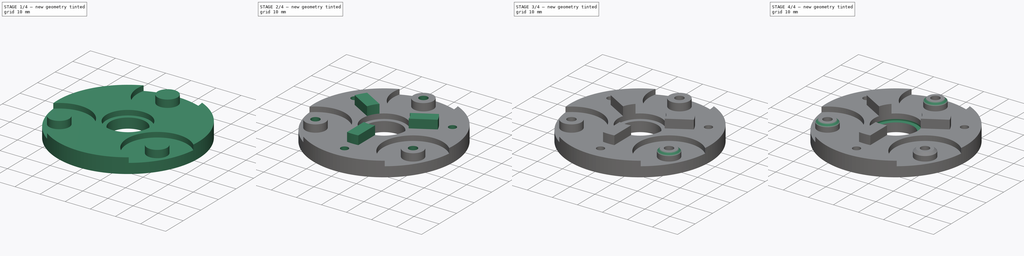
[diagram: build sequence overview — one tinted view per stage of 4, left to right]
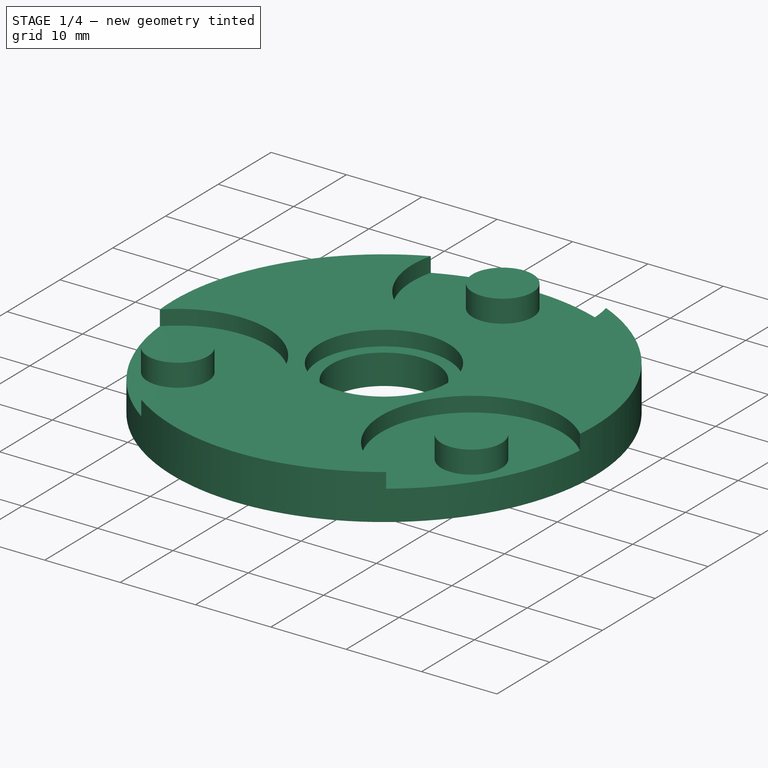
[diagram: stage 1 of 4 — iso view after this stage's code; geometry added in this stage tinted green]
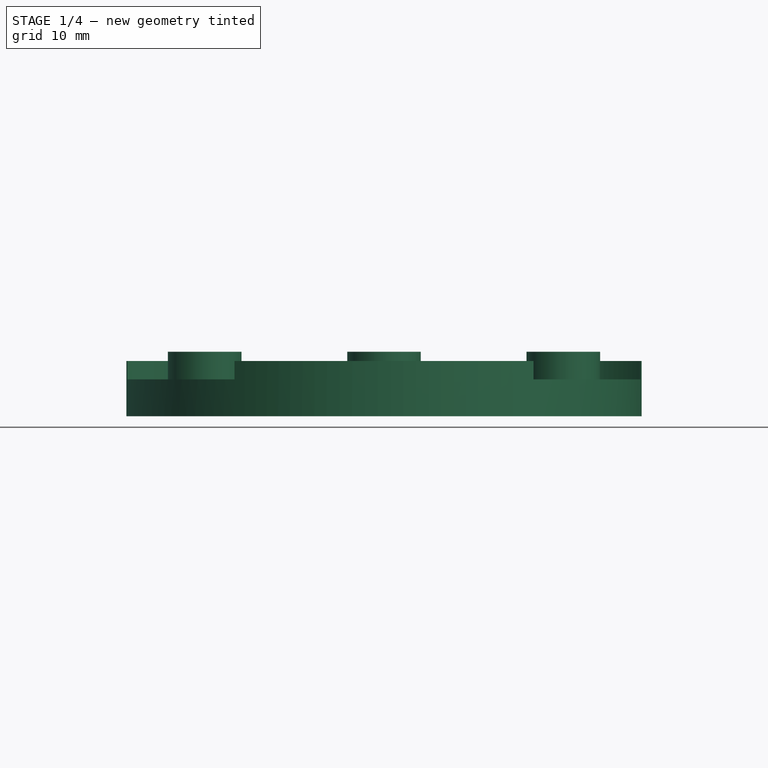
[diagram: stage 1 of 4 — front view after this stage's code; geometry added in this stage tinted green]
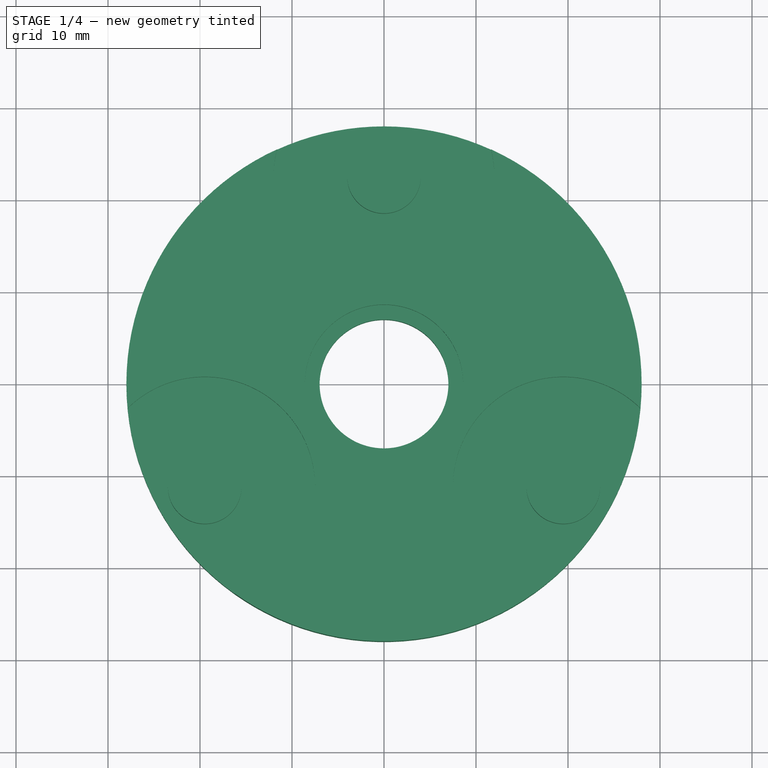
[diagram: stage 1 of 4 — top view after this stage's code; geometry added in this stage tinted green]
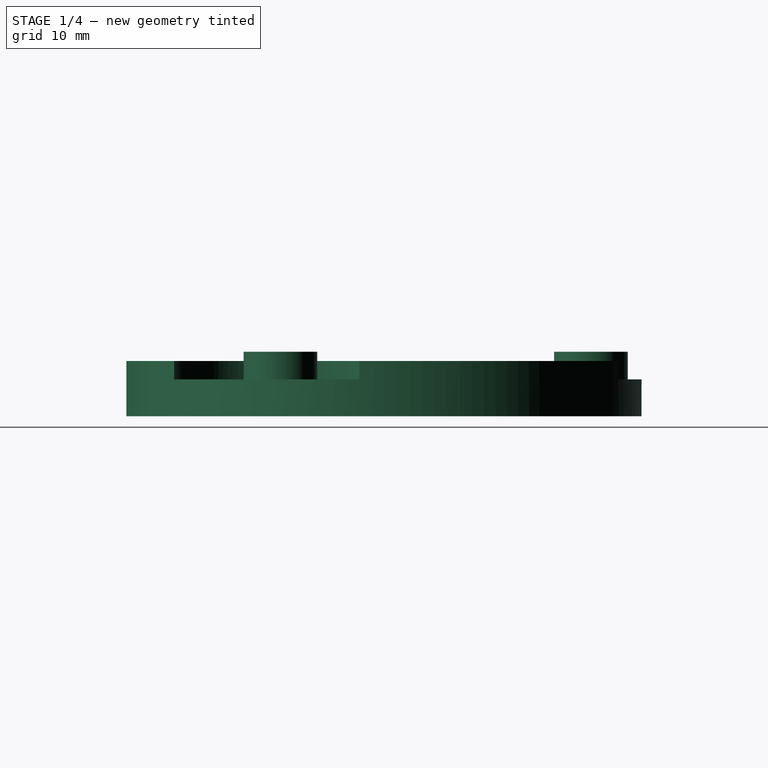
[diagram: stage 1 of 4 — right view after this stage's code; geometry added in this stage tinted green]
FCSTD DOCUMENT  (FreeCAD 0.16R6705 (Git))
Label: CarrierA
License: All rights reserved
LicenseURL: http://en.wikipedia.org/wiki/All_rights_reserved
objects: Sketcher::SketchObject×7, PartDesign::Pocket×4, PartDesign::Pad×3, PartDesign::Chamfer×3, PartDesign::PolarPattern×1
note: 25 computed .brp shape members not serialized (recipe doc carries the construction recipe); baked Part::Feature solids carry a one-line shape summary decoded from their .brp

FEATURE [Sketcher::SketchObject] Sketch  label="BaseDisk"
  Placement = pos=(0,0,25) rot=(0,0,1;0rad)
  sketch-geometry (12):
    g0: Circle [constr] CenterX=0 CenterY=0 CenterZ=0 NormalX=0 NormalY=0 NormalZ=1 Radius=22.5
    g1: LineSegment [constr] StartX=0 StartY=0 StartZ=0 EndX=-19.4856 EndY=-11.25 EndZ=0
    g2: LineSegment [constr] StartX=0 StartY=0 StartZ=0 EndX=19.4856 EndY=-11.25 EndZ=0
    g3: LineSegment [constr] StartX=0 StartY=0 StartZ=0 EndX=0 EndY=22.5 EndZ=0
    g4: Circle [constr] CenterX=0 CenterY=22.5 CenterZ=0 NormalX=0 NormalY=0 NormalZ=1 Radius=1.6
    g5: Circle [constr] CenterX=-19.4856 CenterY=-11.25 CenterZ=0 NormalX=0 NormalY=0 NormalZ=1 Radius=1.6
    g6: Circle [constr] CenterX=19.4856 CenterY=-11.25 CenterZ=0 NormalX=0 NormalY=0 NormalZ=1 Radius=1.6
    g7: Circle CenterX=0 CenterY=0 CenterZ=0 NormalX=0 NormalY=0 NormalZ=1 Radius=7
    g8: Circle CenterX=0 CenterY=0 CenterZ=0 NormalX=0 NormalY=0 NormalZ=1 Radius=28
    g9: LineSegment [constr] StartX=0 StartY=0 StartZ=0 EndX=-24.2487 EndY=14 EndZ=0
    g10: LineSegment [constr] StartX=0 StartY=0 StartZ=0 EndX=24.2487 EndY=14 EndZ=0
    g11: LineSegment [constr] StartX=0 StartY=0 StartZ=0 EndX=0 EndY=-28 EndZ=0
  constraints (30):
    c: Coincident(g0,g-1)
    c: Radius(g0) = 22.5
    c: Coincident(g1,g-1)
    c: PointOnObject(g1,g0)
    c: Coincident(g2,g-1)
    c: PointOnObject(g2,g0)
    c: Angle(g1,g2) = 2.0944
    c: Coincident(g3,g-1)
    c: PointOnObject(g3,g0)
    c: Vertical(g3)
    c: Angle(g2,g3) = 2.0944
    c: Coincident(g4,g3)
    c: Coincident(g5,g1)
    c: Coincident(g6,g2)
    c: Coincident(g7,g-1)
    c: Radius(g6) = 1.6
    c: Equal(g6,g4)
    c: Equal(g6,g5)
    c: Radius(g7) = 7
    c: Radius(g8) = 28
    c: Coincident(g9,g-1)
    c: PointOnObject(g9,g8)
    c: Coincident(g8,g-1)
    c: Coincident(g10,g-1)
    c: PointOnObject(g10,g8)
    c: Coincident(g11,g-1)
    c: PointOnObject(g11,g8)
    c: Angle(g11,g10) = 2.0944
    c: Angle(g9,g11) = 2.0944
    c: Vertical(g11)
FEATURE [PartDesign::Pad] Pad
  Length = 6
  Length2 = 100
  Placement = pos=(0,0,25) rot=(0,0,1;0rad)
  Sketch = -> Sketch
  Type = 0
FEATURE [Sketcher::SketchObject] Sketch007  label="GearCutOut"
  Placement = pos=(0,0,31) rot=(0,0,1;0rad)
  Support = -> Pad [Face4]
  sketch-geometry (13):
    g0: Circle [constr] CenterX=0 CenterY=0 CenterZ=0 NormalX=0 NormalY=0 NormalZ=1 Radius=22.5
    g1: LineSegment [constr] StartX=0 StartY=0 StartZ=0 EndX=-19.4856 EndY=-11.25 EndZ=0
    g2: LineSegment [constr] StartX=0 StartY=0 StartZ=0 EndX=19.4856 EndY=-11.25 EndZ=0
    g3: LineSegment [constr] StartX=0 StartY=0 StartZ=0 EndX=0 EndY=22.5 EndZ=0
    g4: Circle CenterX=0 CenterY=22.5 CenterZ=0 NormalX=0 NormalY=0 NormalZ=1 Radius=12
    g5: Circle CenterX=-19.4856 CenterY=-11.25 CenterZ=0 NormalX=0 NormalY=0 NormalZ=1 Radius=12
    g6: Circle CenterX=19.4856 CenterY=-11.25 CenterZ=0 NormalX=0 NormalY=0 NormalZ=1 Radius=12
    g7: Circle [constr] CenterX=0 CenterY=0 CenterZ=0 NormalX=0 NormalY=0 NormalZ=1 Radius=14
    g8: Circle [constr] CenterX=0 CenterY=0 CenterZ=0 NormalX=0 NormalY=0 NormalZ=1 Radius=28
    g9: LineSegment [constr] StartX=0 StartY=0 StartZ=0 EndX=-24.2487 EndY=14 EndZ=0
    g10: LineSegment [constr] StartX=0 StartY=0 StartZ=0 EndX=24.2487 EndY=14 EndZ=0
    g11: LineSegment [constr] StartX=0 StartY=0 StartZ=0 EndX=0 EndY=-28 EndZ=0
    g12: Circle CenterX=0 CenterY=0 CenterZ=0 NormalX=0 NormalY=0 NormalZ=1 Radius=8.6
  constraints (32):
    c: Coincident(g0,g-1)
    c: Radius(g0) = 22.5
    c: Coincident(g1,g-1)
    c: PointOnObject(g1,g0)
    c: Coincident(g2,g-1)
    c: PointOnObject(g2,g0)
    c: Angle(g1,g2) = 2.0944
    c: Coincident(g3,g-1)
    c: PointOnObject(g3,g0)
    c: Vertical(g3)
    c: Angle(g2,g3) = 2.0944
    c: Coincident(g4,g3)
    c: Coincident(g5,g1)
    c: Coincident(g6,g2)
    c: Coincident(g7,g-1)
    c: Radius(g6) = 12
    c: Equal(g6,g4)
    c: Equal(g6,g5)
    c: Radius(g7) = 14
    c: Radius(g8) = 28
    c: Coincident(g9,g-1)
    c: PointOnObject(g9,g8)
    c: Coincident(g8,g-1)
    c: Coincident(g10,g-1)
    c: PointOnObject(g10,g8)
    c: Coincident(g11,g-1)
    c: PointOnObject(g11,g8)
    c: Angle(g11,g10) = 2.0944
    c: Angle(g9,g11) = 2.0944
    c: Vertical(g11)
    c: Coincident(g12,g-1)
    c: Radius(g12) = 8.6
FEATURE [PartDesign::Pocket] Pocket002
  Length = 2
  Placement = pos=(0,0,25) rot=(0,0,1;0rad)
  Sketch = -> Sketch007
  Type = 0
FEATURE [Sketcher::SketchObject] Sketch001  label="BearingSupports"
  Placement = pos=(0,0,29) rot=(0,0,1;0rad)
  Support = -> Pocket002 [Face5]
  sketch-geometry (10):
    g0: Circle [constr] CenterX=0 CenterY=0 CenterZ=0 NormalX=0 NormalY=0 NormalZ=1 Radius=22.5
    g1: LineSegment [constr] StartX=0 StartY=0 StartZ=0 EndX=0 EndY=22.5 EndZ=0
    g2: LineSegment [constr] StartX=0 StartY=0 StartZ=0 EndX=-19.4856 EndY=-11.25 EndZ=0
    g3: LineSegment [constr] StartX=19.4856 StartY=-11.25 StartZ=0 EndX=0 EndY=0 EndZ=0
    g4: Circle CenterX=0 CenterY=22.5 CenterZ=0 NormalX=0 NormalY=0 NormalZ=1 Radius=4
    g5: Circle [constr] CenterX=0 CenterY=22.5 CenterZ=0 NormalX=0 NormalY=0 NormalZ=1 Radius=1.6
    g6: Circle CenterX=-19.4856 CenterY=-11.25 CenterZ=0 NormalX=0 NormalY=0 NormalZ=1 Radius=4
    g7: Circle [constr] CenterX=-19.4856 CenterY=-11.25 CenterZ=0 NormalX=0 NormalY=0 NormalZ=1 Radius=1.6
    g8: Circle [constr] CenterX=19.4856 CenterY=-11.25 CenterZ=0 NormalX=0 NormalY=0 NormalZ=1 Radius=1.6
    g9: Circle CenterX=19.4856 CenterY=-11.25 CenterZ=0 NormalX=0 NormalY=0 NormalZ=1 Radius=4
  constraints (23):
    c: Coincident(g0,g-1)
    c: Radius(g0) = 22.5
    c: Coincident(g1,g-1)
    c: Vertical(g1)
    c: PointOnObject(g2,g0)
    c: PointOnObject(g3,g0)
    c: Coincident(g3,g-1)
    c: Angle(g2,g3) = 2.0944
    c: Angle(g3,g1) = 2.0944
    c: Coincident(g4,g1)
    c: Coincident(g5,g1)
    c: Radius(g5) = 1.6
    c: Radius(g4) = 4
    c: Coincident(g6,g2)
    c: Radius(g6) = 4
    c: Coincident(g7,g2)
    c: Radius(g7) = 1.6
    c: Coincident(g8,g3)
    c: Radius(g8) = 1.6
    c: Coincident(g9,g3)
    c: Radius(g9) = 4
    c: PointOnObject(g1,g0)
    c: Coincident(g2,g-1)
FEATURE [PartDesign::Pad] Pad001
  Length = 3
  Length2 = 100
  Placement = pos=(0,0,25) rot=(0,0,1;0rad)
  Sketch = -> Sketch001
  Type = 0
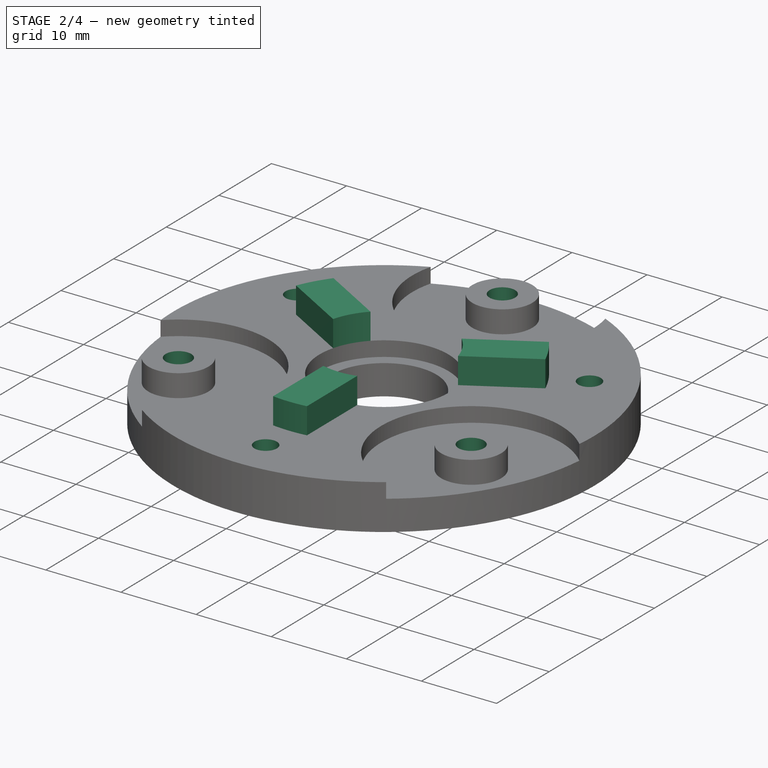
[diagram: stage 2 of 4 — iso view after this stage's code; geometry added in this stage tinted green]
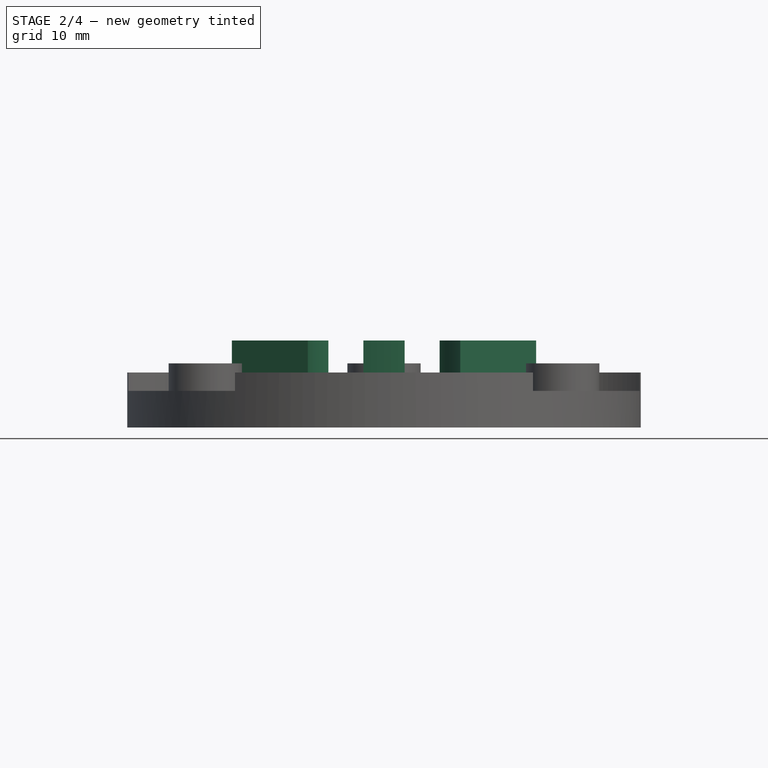
[diagram: stage 2 of 4 — front view after this stage's code; geometry added in this stage tinted green]
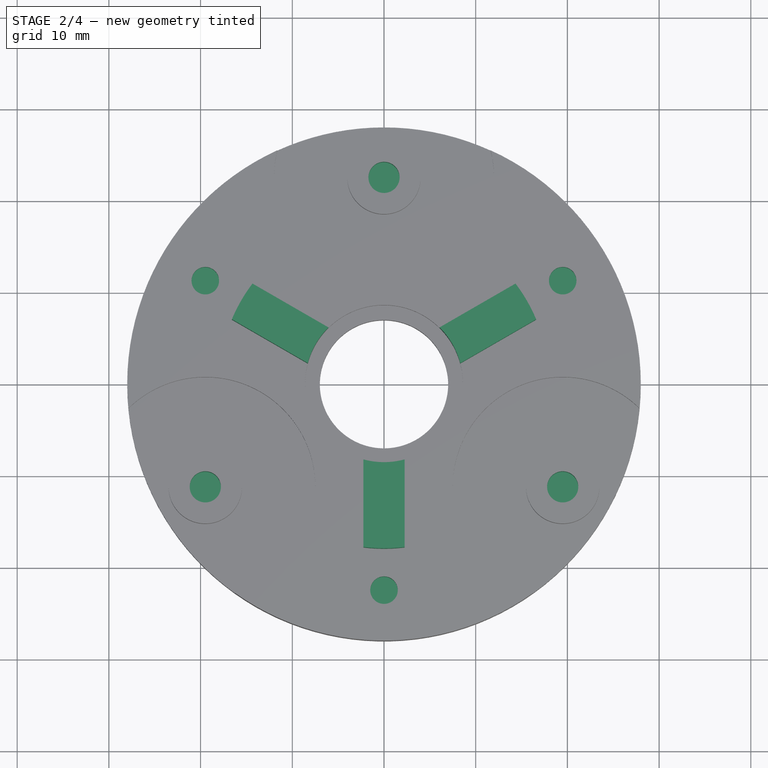
[diagram: stage 2 of 4 — top view after this stage's code; geometry added in this stage tinted green]
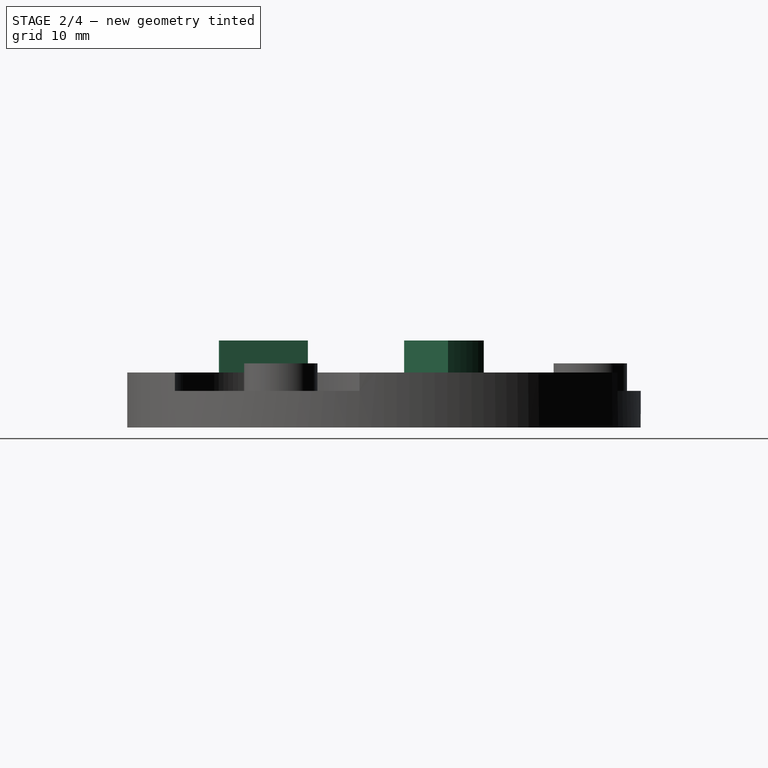
[diagram: stage 2 of 4 — right view after this stage's code; geometry added in this stage tinted green]
FEATURE [Sketcher::SketchObject] Sketch005  label="Lock"
  Placement = pos=(0,0,31) rot=(0,0,1;0rad)
  Support = -> Pad001 [Face3]
  sketch-geometry (4):
    g0: LineSegment StartX=-2.25 StartY=-8.30045 StartZ=0 EndX=-2.25 EndY=-17.8588 EndZ=0
    g1: LineSegment StartX=2.25 StartY=-8.30045 StartZ=0 EndX=2.25 EndY=-17.8588 EndZ=0
    g2: ArcOfCircle CenterX=0 CenterY=0 CenterZ=0 NormalX=0 NormalY=0 NormalZ=1 Radius=8.6 StartAngle=4.44768 EndAngle=4.9771
    g3: ArcOfCircle CenterX=0 CenterY=0 CenterZ=0 NormalX=0 NormalY=0 NormalZ=1 Radius=18 StartAngle=4.58706 EndAngle=4.83772
  constraints (12):
    c: Vertical(g0)
    c: Vertical(g1)
    c: Coincident(g2,g-1)
    c: Coincident(g2,g1)
    c: Coincident(g2,g0)
    c: Coincident(g3,g-1)
    c: Coincident(g3,g1)
    c: Coincident(g3,g0)
    c: Symmetric(g1,g0,g-2)
    c: DistanceX(g0,g1) = 4.5
    c: Radius(g2) = 8.6
    c: Radius(g3) = 18
FEATURE [PartDesign::Pad] Pad002
  Length = 3.5
  Length2 = 100
  Placement = pos=(0,0,25) rot=(0,0,1;0rad)
  Sketch = -> Sketch005
  Type = 0
FEATURE [PartDesign::PolarPattern] PolarPattern
  Angle = 360
  Axis = -> Sketch005 [N_Axis]
  Occurrences = 3
  Originals = -> [Pad002]
  Placement = pos=(0,0,25) rot=(0,0,1;0rad)
FEATURE [Sketcher::SketchObject] Sketch003  label="ScrewHoles"
  Placement = pos=(0,0,32) rot=(0,0,1;0rad)
  Support = -> PolarPattern [Face32]
  sketch-geometry (18):
    g0: Circle [constr] CenterX=0 CenterY=0 CenterZ=0 NormalX=0 NormalY=0 NormalZ=1 Radius=22.5
    g1: LineSegment [constr] StartX=0 StartY=0 StartZ=0 EndX=-19.4856 EndY=-11.25 EndZ=0
    g2: LineSegment [constr] StartX=0 StartY=0 StartZ=0 EndX=19.4856 EndY=-11.25 EndZ=0
    g3: LineSegment [constr] StartX=0 StartY=0 StartZ=0 EndX=0 EndY=22.5 EndZ=0
    g4: Circle CenterX=0 CenterY=22.5 CenterZ=0 NormalX=0 NormalY=0 NormalZ=1 Radius=1.7
    g5: Circle CenterX=-19.4856 CenterY=-11.25 CenterZ=0 NormalX=0 NormalY=0 NormalZ=1 Radius=1.7
    g6: Circle CenterX=19.4856 CenterY=-11.25 CenterZ=0 NormalX=0 NormalY=0 NormalZ=1 Radius=1.7
    g7: Circle [constr] CenterX=0 CenterY=0 CenterZ=0 NormalX=0 NormalY=0 NormalZ=1 Radius=14
    g8: Circle [constr] CenterX=0 CenterY=0 CenterZ=0 NormalX=0 NormalY=0 NormalZ=1 Radius=28
    g9: LineSegment [constr] StartX=0 StartY=0 StartZ=0 EndX=-24.2487 EndY=14 EndZ=0
    g10: LineSegment [constr] StartX=0 StartY=0 StartZ=0 EndX=24.2487 EndY=14 EndZ=0
    g11: LineSegment [constr] StartX=0 StartY=0 StartZ=0 EndX=0 EndY=-28 EndZ=0
    g12: GeomPoint [constr] X=-19.4856 Y=11.25 Z=0
    g13: GeomPoint [constr] X=19.4856 Y=11.25 Z=0
    g14: GeomPoint [constr] X=0 Y=-22.5 Z=0
    g15: Circle CenterX=-19.4856 CenterY=11.25 CenterZ=0 NormalX=0 NormalY=0 NormalZ=1 Radius=1.5
    g16: Circle CenterX=19.4856 CenterY=11.25 CenterZ=0 NormalX=0 NormalY=0 NormalZ=1 Radius=1.5
    g17: Circle CenterX=0 CenterY=-22.5 CenterZ=0 NormalX=0 NormalY=0 NormalZ=1 Radius=1.5
  constraints (42):
    c: Coincident(g0,g-1)
    c: Radius(g0) = 22.5
    c: Coincident(g1,g-1)
    c: PointOnObject(g1,g0)
    c: Coincident(g2,g-1)
    c: PointOnObject(g2,g0)
    c: Angle(g1,g2) = 2.0944
    c: Coincident(g3,g-1)
    c: PointOnObject(g3,g0)
    c: Vertical(g3)
    c: Angle(g2,g3) = 2.0944
    c: Coincident(g4,g3)
    c: Coincident(g5,g1)
    c: Coincident(g6,g2)
    c: Coincident(g7,g-1)
    c: Radius(g6) = 1.7
    c: Equal(g6,g4)
    c: Equal(g6,g5)
    c: Radius(g7) = 14
    c: Radius(g8) = 28
    c: Coincident(g9,g-1)
    c: PointOnObject(g9,g8)
    c: Coincident(g8,g-1)
    c: Coincident(g10,g-1)
    c: PointOnObject(g10,g8)
    c: Coincident(g11,g-1)
    c: PointOnObject(g11,g8)
    c: Angle(g11,g10) = 2.0944
    c: Angle(g9,g11) = 2.0944
    c: Vertical(g11)
    c: PointOnObject(g12,g0)
    c: PointOnObject(g12,g9)
    c: PointOnObject(g13,g0)
    c: PointOnObject(g13,g10)
    c: PointOnObject(g14,g0)
    c: PointOnObject(g14,g11)
    c: Coincident(g15,g12)
    c: Coincident(g16,g13)
    c: Coincident(g17,g14)
    c: Radius(g17) = 1.5
    c: Equal(g17,g16)
    c: Equal(g17,g15)
FEATURE [PartDesign::Pocket] Pocket001
  Length = 3.5
  Placement = pos=(0,0,25) rot=(0,0,1;0rad)
  Sketch = -> Sketch003
  Type = 0
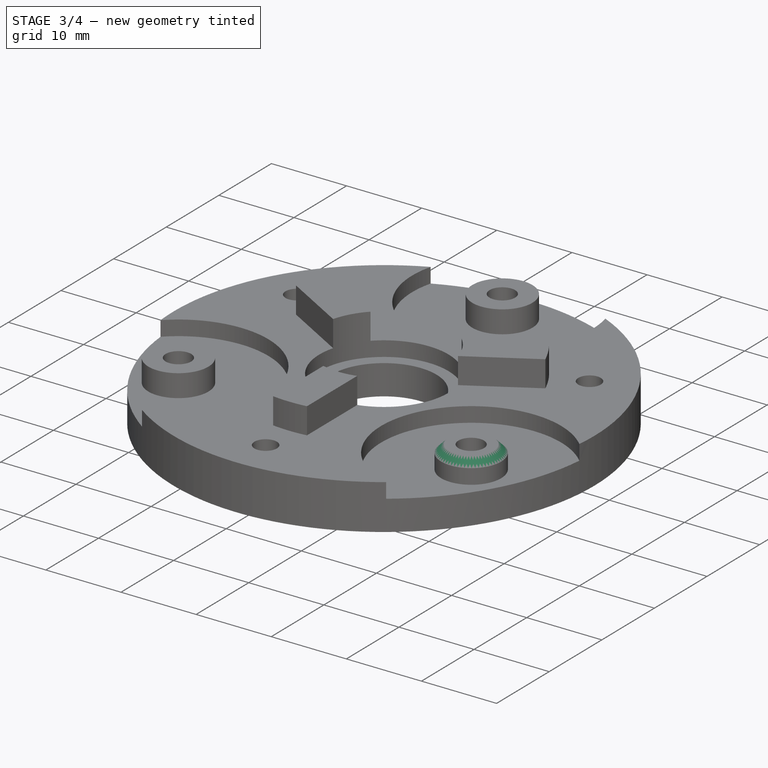
[diagram: stage 3 of 4 — iso view after this stage's code; geometry added in this stage tinted green]
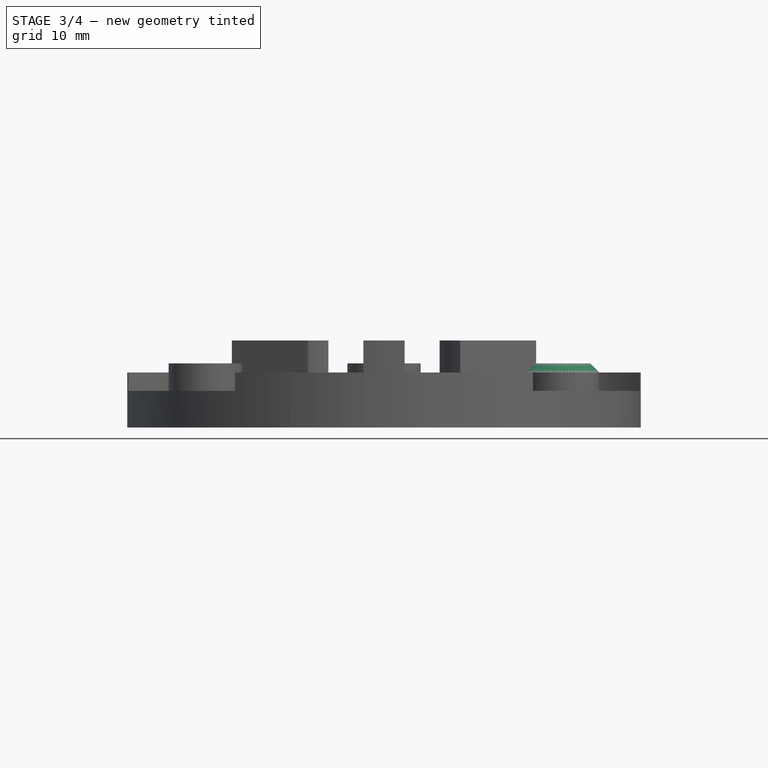
[diagram: stage 3 of 4 — front view after this stage's code; geometry added in this stage tinted green]
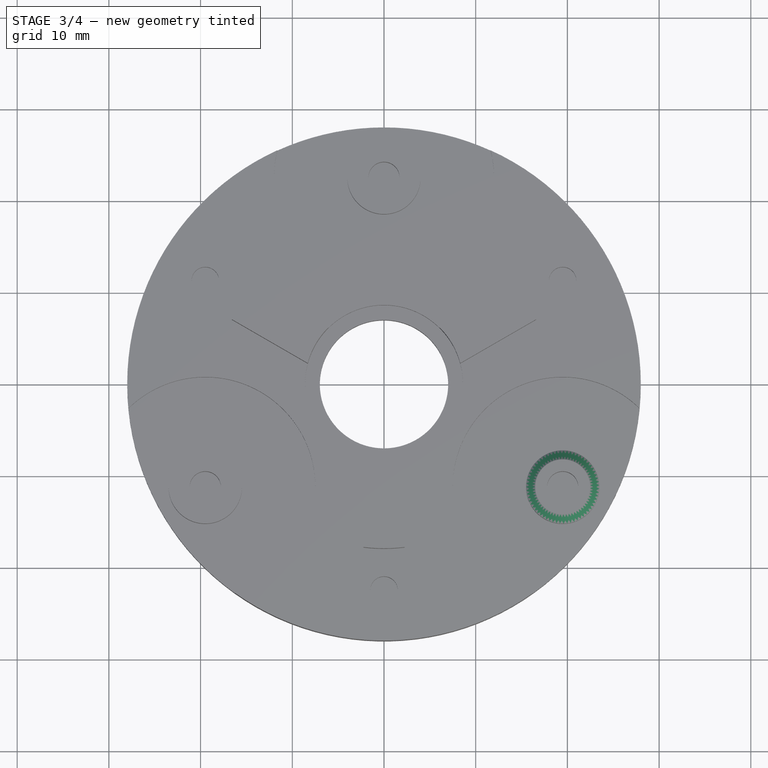
[diagram: stage 3 of 4 — top view after this stage's code; geometry added in this stage tinted green]
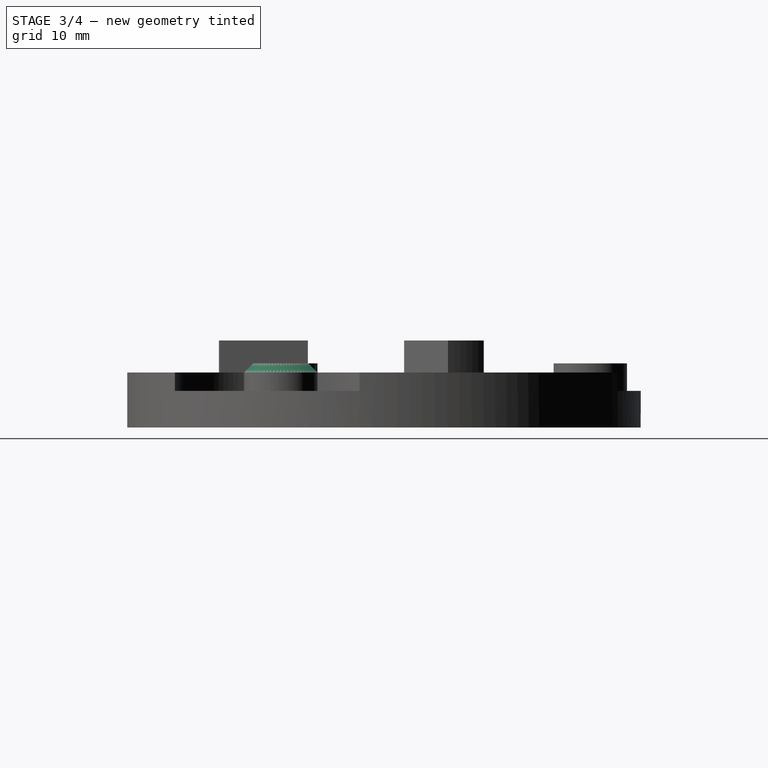
[diagram: stage 3 of 4 — right view after this stage's code; geometry added in this stage tinted green]
FEATURE [Sketcher::SketchObject] Sketch004  label="NutHoles"
  Placement = pos=(0,0,25) rot=(1,0,0;3.14159rad)
  Support = -> Pocket001 [Face2]
  sketch-geometry (55):
    g0: Circle [constr] CenterX=0 CenterY=0 CenterZ=0 NormalX=0 NormalY=0 NormalZ=1 Radius=22.5
    g1: LineSegment [constr] StartX=0 StartY=0 StartZ=0 EndX=-19.4856 EndY=-11.25 EndZ=0
    g2: LineSegment [constr] StartX=0 StartY=0 StartZ=0 EndX=19.4856 EndY=-11.25 EndZ=0
    g3: LineSegment [constr] StartX=0 StartY=0 StartZ=0 EndX=0 EndY=22.5 EndZ=0
    g4: Circle [constr] CenterX=0 CenterY=0 CenterZ=0 NormalX=0 NormalY=0 NormalZ=1 Radius=14
    g5: Circle [constr] CenterX=0 CenterY=0 CenterZ=0 NormalX=0 NormalY=0 NormalZ=1 Radius=28
    g6: LineSegment [constr] StartX=0 StartY=0 StartZ=0 EndX=-24.2487 EndY=14 EndZ=0
    g7: LineSegment [constr] StartX=0 StartY=0 StartZ=0 EndX=24.2487 EndY=14 EndZ=0
    g8: LineSegment [constr] StartX=0 StartY=0 StartZ=0 EndX=0 EndY=-28 EndZ=0
    g9: GeomPoint [constr] X=-19.4856 Y=11.25 Z=0
    g10: GeomPoint [constr] X=19.4856 Y=11.25 Z=0
    g11: GeomPoint [constr] X=0 Y=-22.5 Z=0
    g12: LineSegment StartX=-16.6856 StartY=9.63342 StartZ=0 EndX=-16.6856 EndY=12.8666 EndZ=0
    g13: LineSegment StartX=-16.6856 StartY=12.8666 StartZ=0 EndX=-19.4856 EndY=14.4832 EndZ=0
    g14: LineSegment StartX=-19.4856 StartY=14.4832 StartZ=0 EndX=-22.2856 EndY=12.8666 EndZ=0
    g15: LineSegment StartX=-22.2856 StartY=12.8666 StartZ=0 EndX=-22.2856 EndY=9.63342 EndZ=0
    g16: LineSegment StartX=-22.2856 StartY=9.63342 StartZ=0 EndX=-19.4856 EndY=8.01684 EndZ=0
    g17: LineSegment StartX=-19.4856 StartY=8.01684 StartZ=0 EndX=-16.6856 EndY=9.63342 EndZ=0
    g18: Circle [constr] CenterX=-19.4856 CenterY=11.25 CenterZ=0 NormalX=0 NormalY=0 NormalZ=1 Radius=3.23316
    g19: LineSegment StartX=-2.8 StartY=24.1166 StartZ=0 EndX=-2.8 EndY=20.8834 EndZ=0
    g20: LineSegment StartX=-2.8 StartY=20.8834 StartZ=0 EndX=0 EndY=19.2668 EndZ=0
    g21: LineSegment StartX=0 StartY=19.2668 StartZ=0 EndX=2.8 EndY=20.8834 EndZ=0
    g22: LineSegment StartX=2.8 StartY=20.8834 StartZ=0 EndX=2.8 EndY=24.1166 EndZ=0
    g23: LineSegment StartX=2.8 StartY=24.1166 StartZ=0 EndX=0 EndY=25.7332 EndZ=0
    g24: LineSegment StartX=0 StartY=25.7332 StartZ=0 EndX=-2.8 EndY=24.1166 EndZ=0
    g25: Circle [constr] CenterX=0 CenterY=22.5 CenterZ=0 NormalX=0 NormalY=0 NormalZ=1 Radius=3.23316
    g26: LineSegment StartX=19.4856 StartY=14.4832 StartZ=0 EndX=16.6856 EndY=12.8666 EndZ=0
    g27: LineSegment StartX=16.6856 StartY=12.8666 StartZ=0 EndX=16.6856 EndY=9.63342 EndZ=0
    g28: LineSegment StartX=16.6856 StartY=9.63342 StartZ=0 EndX=19.4856 EndY=8.01684 EndZ=0
    g29: LineSegment StartX=19.4856 StartY=8.01684 StartZ=0 EndX=22.2856 EndY=9.63342 EndZ=0
    g30: LineSegment StartX=22.2856 StartY=9.63342 StartZ=0 EndX=22.2856 EndY=12.8666 EndZ=0
    g31: LineSegment StartX=22.2856 StartY=12.8666 StartZ=0 EndX=19.4856 EndY=14.4832 EndZ=0
    g32: Circle [constr] CenterX=19.4856 CenterY=11.25 CenterZ=0 NormalX=0 NormalY=0 NormalZ=1 Radius=3.23316
    g33: LineSegment StartX=19.4856 StartY=-8.01684 StartZ=0 EndX=16.6856 EndY=-9.63342 EndZ=0
    g34: LineSegment StartX=16.6856 StartY=-9.63342 StartZ=0 EndX=16.6856 EndY=-12.8666 EndZ=0
    g35: LineSegment StartX=16.6856 StartY=-12.8666 StartZ=0 EndX=19.4856 EndY=-14.4832 EndZ=0
    g36: LineSegment StartX=19.4856 StartY=-14.4832 StartZ=0 EndX=22.2856 EndY=-12.8666 EndZ=0
    g37: LineSegment StartX=22.2856 StartY=-12.8666 StartZ=0 EndX=22.2856 EndY=-9.63342 EndZ=0
    g38: LineSegment StartX=22.2856 StartY=-9.63342 StartZ=0 EndX=19.4856 EndY=-8.01684 EndZ=0
    g39: Circle [constr] CenterX=19.4856 CenterY=-11.25 CenterZ=0 NormalX=0 NormalY=0 NormalZ=1 Radius=3.23316
    g40: LineSegment StartX=-22.2856 StartY=-9.63342 StartZ=0 EndX=-22.2856 EndY=-12.8666 EndZ=0
    g41: LineSegment StartX=-22.2856 StartY=-12.8666 StartZ=0 EndX=-19.4856 EndY=-14.4832 EndZ=0
    g42: LineSegment StartX=-19.4856 StartY=-14.4832 StartZ=0 EndX=-16.6856 EndY=-12.8666 EndZ=0
    g43: LineSegment StartX=-16.6856 StartY=-12.8666 StartZ=0 EndX=-16.6856 EndY=-9.63342 EndZ=0
    g44: LineSegment StartX=-16.6856 StartY=-9.63342 StartZ=0 EndX=-19.4856 EndY=-8.01684 EndZ=0
    g45: LineSegment StartX=-19.4856 StartY=-8.01684 StartZ=0 EndX=-22.2856 EndY=-9.63342 EndZ=0
    g46: Circle [constr] CenterX=-19.4856 CenterY=-11.25 CenterZ=0 NormalX=0 NormalY=0 NormalZ=1 Radius=3.23316
    g47: LineSegment StartX=-2.8 StartY=-20.8834 StartZ=0 EndX=-2.8 EndY=-24.1166 EndZ=0
    g48: LineSegment StartX=-2.8 StartY=-24.1166 StartZ=0 EndX=0 EndY=-25.7332 EndZ=0
    g49: LineSegment StartX=0 StartY=-25.7332 StartZ=0 EndX=2.8 EndY=-24.1166 EndZ=0
    g50: LineSegment StartX=2.8 StartY=-24.1166 StartZ=0 EndX=2.8 EndY=-20.8834 EndZ=0
    g51: LineSegment StartX=2.8 StartY=-20.8834 StartZ=0 EndX=0 EndY=-19.2668 EndZ=0
    g52: LineSegment StartX=0 StartY=-19.2668 StartZ=0 EndX=-2.8 EndY=-20.8834 EndZ=0
    g53: Circle [constr] CenterX=0 CenterY=-22.5 CenterZ=0 NormalX=0 NormalY=0 NormalZ=1 Radius=3.23316
    g54: Circle [constr] CenterX=0 CenterY=0 CenterZ=0 NormalX=0 NormalY=0 NormalZ=1 Radius=19.2668
  constraints (128):
    c: Coincident(g0,g-1)
    c: Radius(g0) = 22.5
    c: Coincident(g1,g-1)
    c: PointOnObject(g1,g0)
    c: Coincident(g2,g-1)
    c: PointOnObject(g2,g0)
    c: Angle(g1,g2) = 2.0944
    c: Coincident(g3,g-1)
    c: PointOnObject(g3,g0)
    c: Vertical(g3)
    c: Angle(g2,g3) = 2.0944
    c: Coincident(g4,g-1)
    c: Radius(g4) = 14
    c: Radius(g5) = 28
    c: Coincident(g6,g-1)
    c: PointOnObject(g6,g5)
    c: Coincident(g5,g-1)
    c: Coincident(g7,g-1)
    c: PointOnObject(g7,g5)
    c: Coincident(g8,g-1)
    c: PointOnObject(g8,g5)
    c: Angle(g8,g7) = 2.0944
    c: Angle(g6,g8) = 2.0944
    c: Vertical(g8)
    c: PointOnObject(g9,g0)
    c: PointOnObject(g9,g6)
    c: PointOnObject(g10,g0)
    c: PointOnObject(g10,g7)
    c: PointOnObject(g11,g0)
    c: PointOnObject(g11,g8)
    c: Coincident(g12,g13)
    c: Coincident(g13,g14)
    c: Coincident(g14,g15)
    c: Coincident(g15,g16)
    c: Coincident(g16,g17)
    c: Coincident(g17,g12)
    c: Equal(g12, g13-g17) x5
    c: PointOnObject(g12,g18)
    c: PointOnObject(g13,g18)
    c: PointOnObject(g14,g18)
    c: PointOnObject(g15,g18)
    c: PointOnObject(g16,g18)
    c: PointOnObject(g17,g18)
    c: Coincident(g18,g9)
    c: Coincident(g19,g20)
    c: Coincident(g20,g21)
    c: Coincident(g21,g22)
    c: Coincident(g22,g23)
    c: Coincident(g23,g24)
    c: Coincident(g24,g19)
    c: Equal(g19, g20-g24) x5
    c: PointOnObject(g19,g25)
    c: PointOnObject(g20,g25)
    c: PointOnObject(g21,g25)
    c: PointOnObject(g22,g25)
    c: PointOnObject(g23,g25)
    c: PointOnObject(g24,g25)
    c: Coincident(g25,g3)
    c: Coincident(g26,g27)
    c: Coincident(g27,g28)
    c: Coincident(g28,g29)
    c: Coincident(g29,g30)
    c: Coincident(g30,g31)
    c: Coincident(g31,g26)
    c: Equal(g26, g27-g31) x5
    c: PointOnObject(g26,g32)
    c: PointOnObject(g27,g32)
    c: PointOnObject(g28,g32)
    c: PointOnObject(g29,g32)
    c: PointOnObject(g30,g32)
    c: PointOnObject(g31,g32)
    c: Coincident(g32,g10)
    c: Coincident(g33,g34)
    c: Coincident(g34,g35)
    c: Coincident(g35,g36)
    c: Coincident(g36,g37)
    c: Coincident(g37,g38)
    c: Coincident(g38,g33)
    c: Equal(g33, g34-g38) x5
    c: PointOnObject(g33,g39)
    c: PointOnObject(g34,g39)
    c: PointOnObject(g35,g39)
    c: PointOnObject(g36,g39)
    c: PointOnObject(g37,g39)
    c: PointOnObject(g38,g39)
    c: Coincident(g39,g2)
    c: Coincident(g40,g41)
    c: Coincident(g41,g42)
    c: Coincident(g42,g43)
    c: Coincident(g43,g44)
    c: Coincident(g44,g45)
    c: Coincident(g45,g40)
    c: Equal(g40, g41-g45) x5
    c: PointOnObject(g40,g46)
    c: PointOnObject(g41,g46)
    c: PointOnObject(g42,g46)
    c: PointOnObject(g43,g46)
    c: PointOnObject(g44,g46)
    c: PointOnObject(g45,g46)
    c: Coincident(g46,g1)
    c: Coincident(g47,g48)
    c: Coincident(g48,g49)
    c: Coincident(g49,g50)
    c: Coincident(g50,g51)
    c: Coincident(g51,g52)
    c: Coincident(g52,g47)
    c: Equal(g47, g48-g52) x5
    c: PointOnObject(g47,g53)
    c: PointOnObject(g48,g53)
    c: PointOnObject(g49,g53)
    c: PointOnObject(g50,g53)
    c: PointOnObject(g51,g53)
    c: PointOnObject(g52,g53)
    c: PointOnObject(g12,g6)
    c: PointOnObject(g20,g3)
    c: PointOnObject(g27,g7)
    c: PointOnObject(g33,g2)
    c: PointOnObject(g51,g8)
    c: Coincident(g53,g11)
    c: Coincident(g54,g-1)
    c: PointOnObject(g20,g54)
    c: PointOnObject(g12,g54)
    c: PointOnObject(g43,g54)
    c: PointOnObject(g51,g54)
    c: PointOnObject(g33,g54)
    c: PointOnObject(g27,g54)
    c: DistanceX(g47,g49) = 5.6
    c: PointOnObject(g43,g1)
FEATURE [PartDesign::Pocket] Pocket  label="NotFinal"
  Length = 3.4
  Placement = pos=(0,0,25) rot=(0,0,1;0rad)
  Sketch = -> Sketch004
  Type = 0
FEATURE [PartDesign::Chamfer] Chamfer
  Base = -> Pocket [Edge189]
  Placement = pos=(0,0,25) rot=(0,0,1;0rad)
  Size = 1
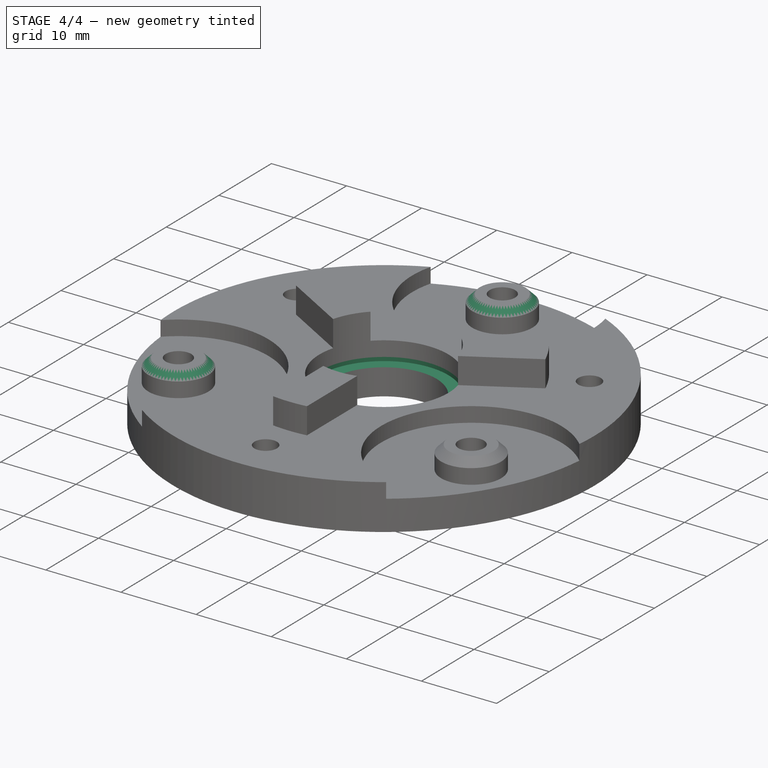
[diagram: stage 4 of 4 — iso view after this stage's code; geometry added in this stage tinted green]
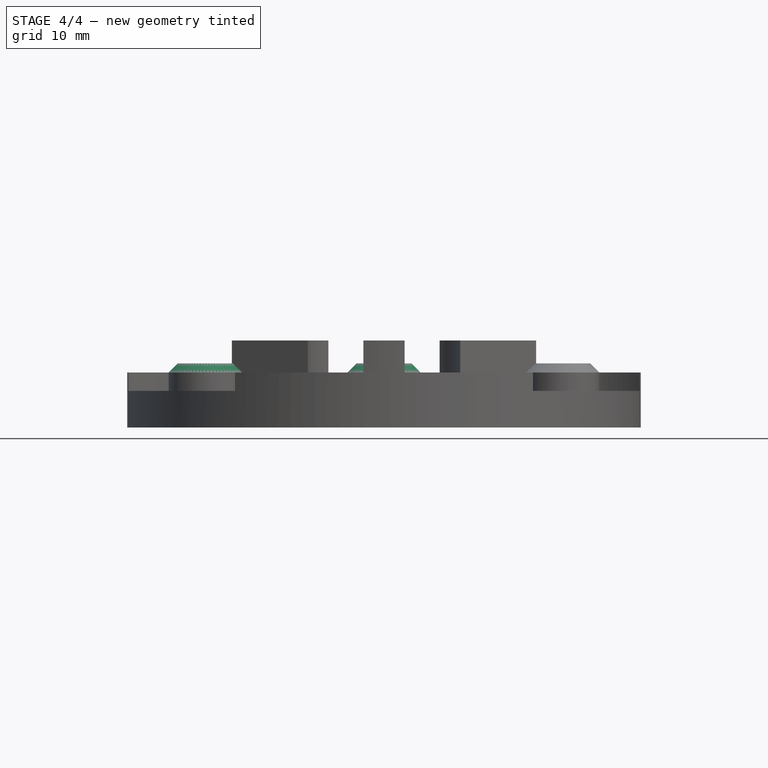
[diagram: stage 4 of 4 — front view after this stage's code; geometry added in this stage tinted green]
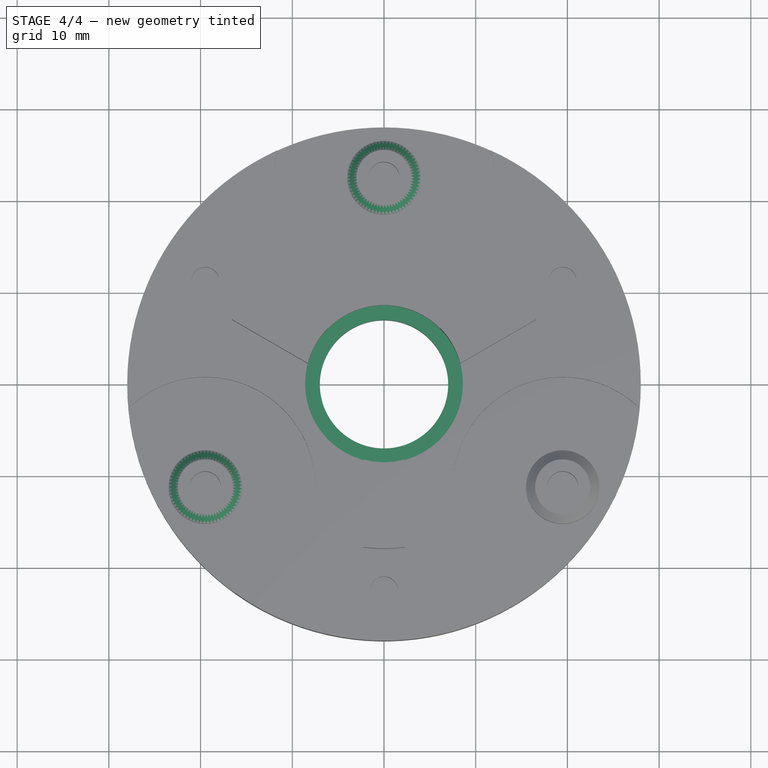
[diagram: stage 4 of 4 — top view after this stage's code; geometry added in this stage tinted green]
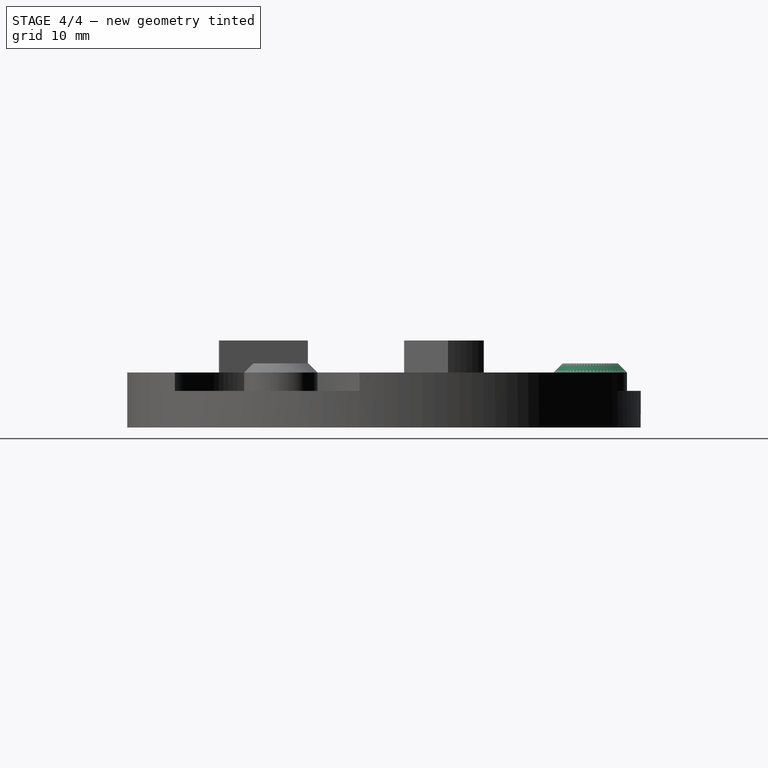
[diagram: stage 4 of 4 — right view after this stage's code; geometry added in this stage tinted green]
FEATURE [PartDesign::Chamfer] Chamfer001
  Base = -> Chamfer [Edge196]
  Placement = pos=(0,0,25) rot=(0,0,1;0rad)
  Size = 1
FEATURE [PartDesign::Chamfer] Chamfer002
  Base = -> Chamfer001 [Edge198]
  Placement = pos=(0,0,25) rot=(0,0,1;0rad)
  Size = 1
FEATURE [Sketcher::SketchObject] Sketch008
  Placement = pos=(0,0,31) rot=(0,0,1;0rad)
  Support = -> Chamfer002 [Face8]
  sketch-geometry (1):
    g0: Circle CenterX=0 CenterY=0 CenterZ=0 NormalX=0 NormalY=0 NormalZ=1 Radius=8.6
  constraints (2):
    c: Coincident(g0,g-1)
    c: Radius(g0) = 8.6
FEATURE [PartDesign::Pocket] Pocket003  label="Final"
  Length = 2.5
  Placement = pos=(0,0,25) rot=(0,0,1;0rad)
  Sketch = -> Sketch008
  Type = 0
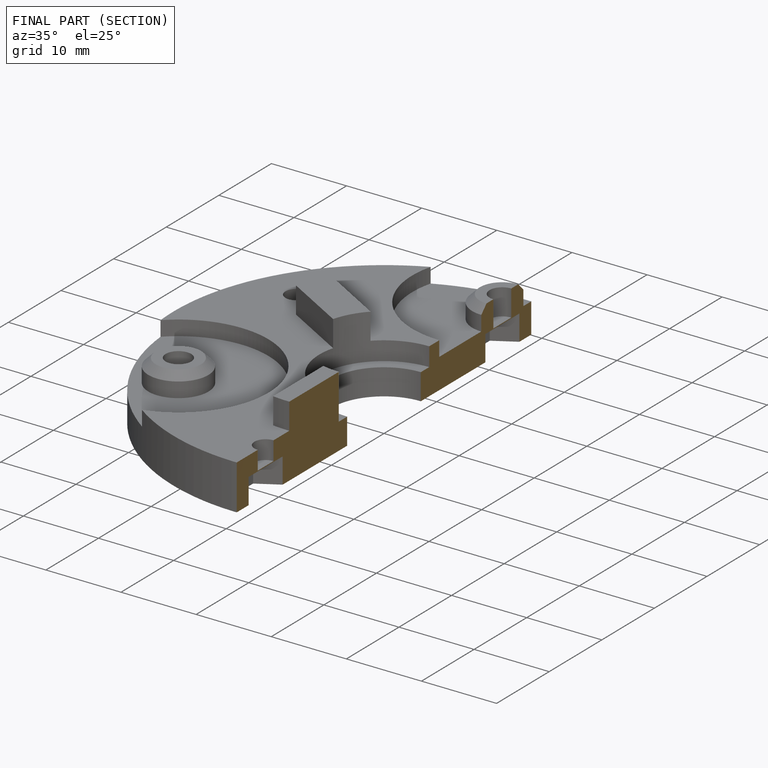
[diagram: finished part — half-section view (interior)]
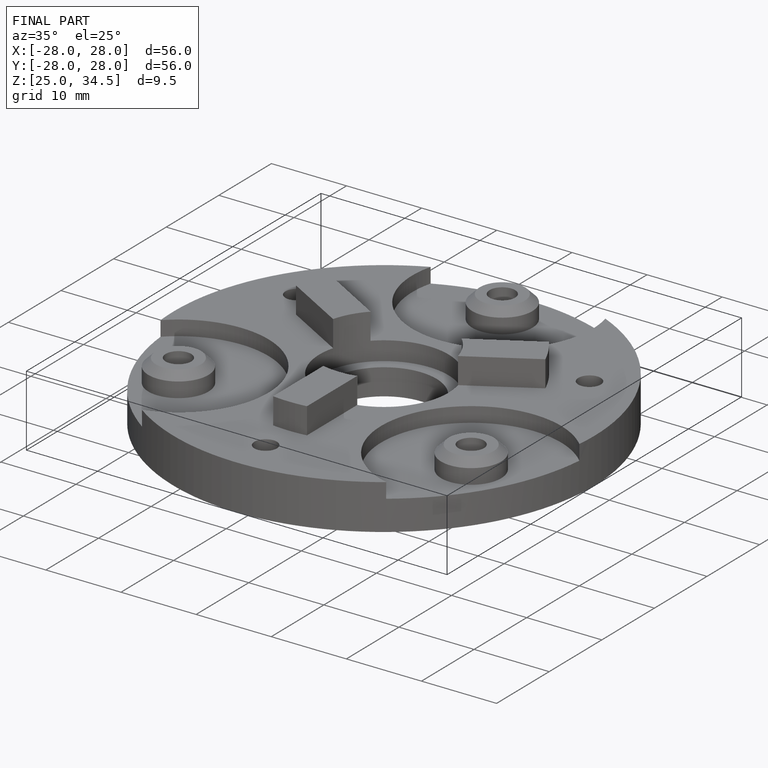
[diagram: finished part — iso view with bounding-box wireframe]
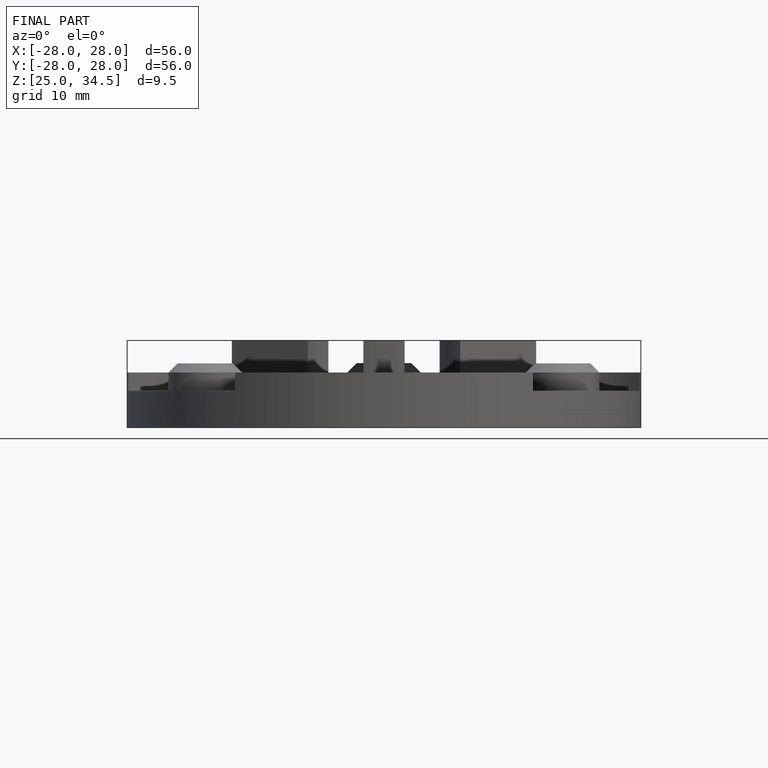
[diagram: finished part — front view with bounding-box wireframe]
